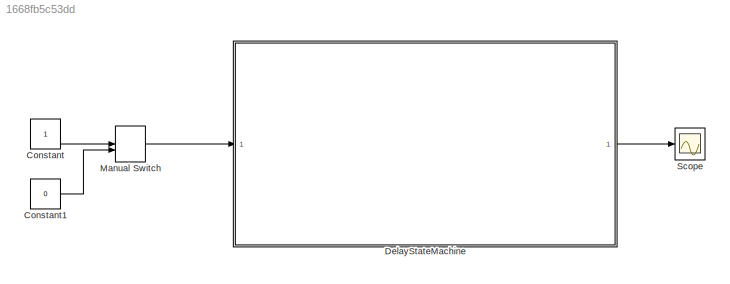
MODEL slx_1668fb5c53dd
KIND model
CONFIG AbsTol = auto
CONFIG EnableMultiTasking = off
CONFIG FixedStep = auto
CONFIG MaxStep = auto
CONFIG MinStep = auto
CONFIG RelTol = 1e-3
CONFIG SampleTimeConstraint = Unconstrained
CONFIG SolverName = VariableStepAuto
CONFIG StartTime = 0.0
CONFIG StopTime = 30.0
BLOCK [Constant] Constant
BLOCK [Constant] Constant1
  Value = 0
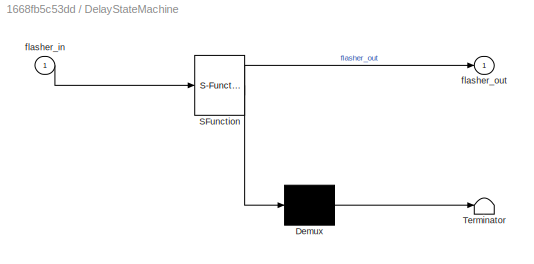
BLOCK [SubSystem] DelayStateMachine
  ErrorFcn = Stateflow.Translate.translate
  PermitHierarchicalResolution = ExplicitOnly
  SFBlockType = Chart
  TreatAsAtomicUnit = on
BLOCK [Demux] DelayStateMachine/ Demux 
  Outputs = 1
BLOCK [S-Function] DelayStateMachine/ SFunction 
  EnableBusSupport = on
  FunctionName = sf_sfun
  Parameters = delay1,delay2
  PortCounts = [1 2]
  SFcnIsStateOwnerBlock = off
  SFunctionDeploymentMode = off
  Tag = Stateflow S-Function 3
BLOCK [Terminator] DelayStateMachine/ Terminator 
BLOCK [Inport] DelayStateMachine/flasher_in
BLOCK [Outport] DelayStateMachine/flasher_out
BLOCK [ManualSwitch] Manual Switch
BLOCK [Scope] Scope
  Floating = off
  NumInputPorts = 1
  ScopeSpecificationString = Simulink.scopes.TimeScopeBlockCfg('CurrentConfiguration', extmgr.ConfigurationSet(extmgr.Configuration('Core','General UI',true),extmgr.Configuration('Core','Source UI',true),extmgr.Configuration('Sources','WiredSimulink',true),extmgr.Configuration('Visuals','Time Domain',true,'SerializedDisplays',{struct('MinYLimReal','-0.125','MaxYLimReal','1.125','YLabelReal','','MinYLimMag','0.00000','MaxYLimM...<+1325ch>
LINE Constant1:1 -> Manual Switch:2
LINE Constant:1 -> Manual Switch:1
LINE DelayStateMachine:1 -> Scope:1
LINE Manual Switch:1 -> DelayStateMachine:1
CHART DelayStateMachine states=3 transitions=5
  STATE_LABEL 'Idle\nentry:\nflasher_out = 0;\n'
  STATE_LABEL 'OFF\nentry:\nflasher_out=0;\n'
  STATE_LABEL 'ON\nentry:\nflasher_out = 1;'
CHART  states=0 transitions=0
